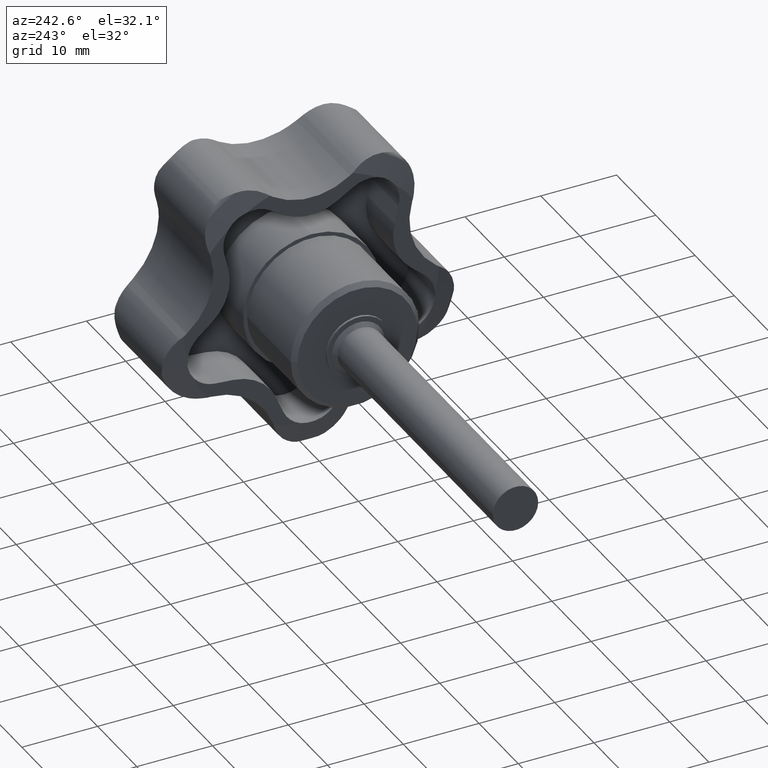
[diagram: clean part render]
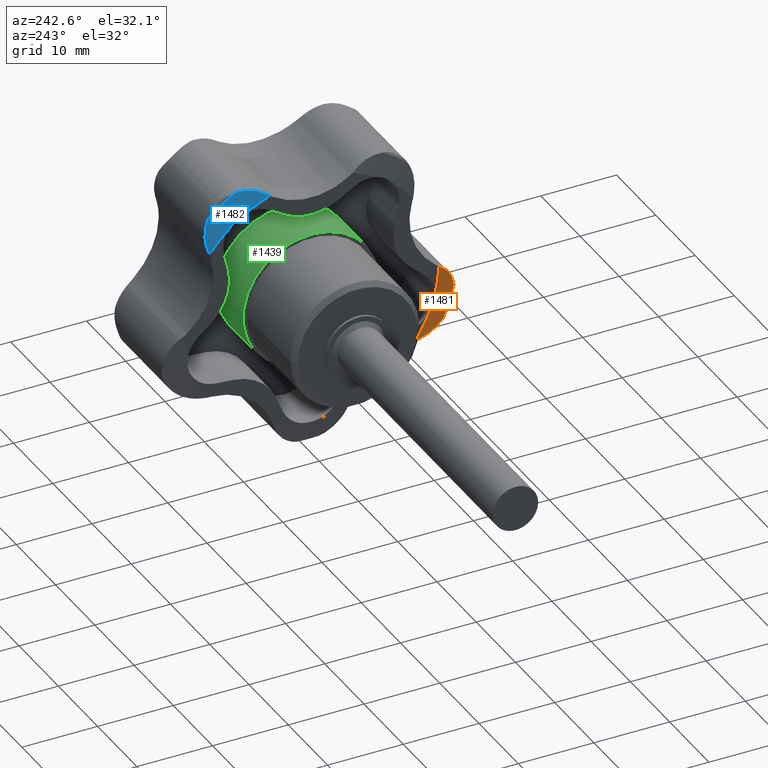
[diagram: same view with three faces highlighted in distinct colors, each labeled with its STEP entity id]
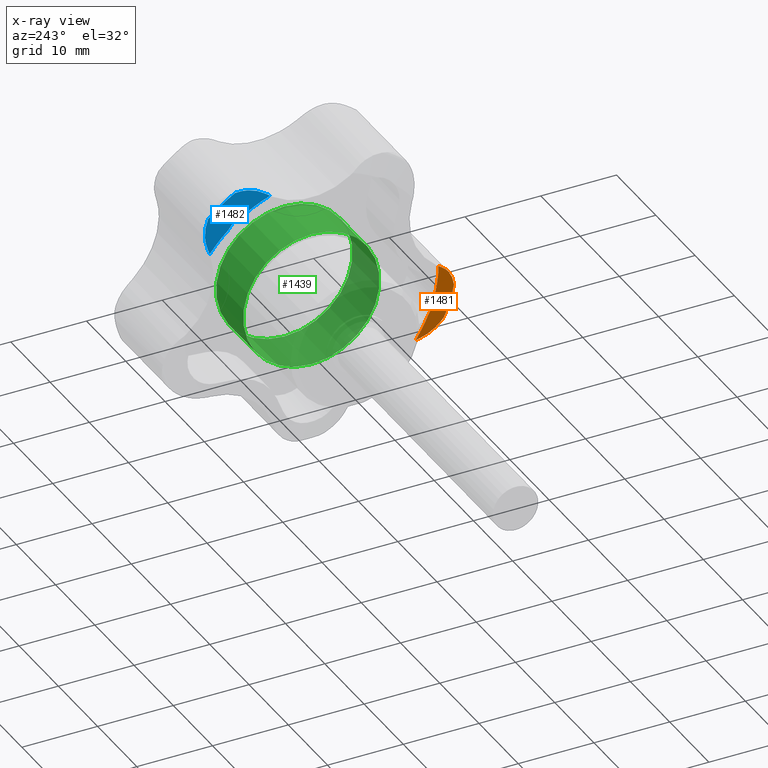
[diagram: x-ray of the same camera — body ghosted, the three highlighted faces saturated]
A machine part, auxiliary view with three faces highlighted in distinct colors.
The next image is the same camera in x-ray (body ghosted, the three faces saturated) — at least one of them is partly hidden behind the body in this view.
Their STEP definitions:

[orange] entity #1481 — the highlighted conical surface has half-angle 75 deg.
#248=B_SPLINE_CURVE_WITH_KNOTS('',3,(#2438,#2439,#2440,#2441,#2442,#2443,
#2444,#2445),.UNSPECIFIED.,.F.,.F.,(4,2,2,4),(-0.721710174736961,-0.708651968026769,
-0.475513355608159,-0.338070224875224),.UNSPECIFIED.);
#266=B_SPLINE_CURVE_WITH_KNOTS('',3,(#2766,#2767,#2768,#2769,#2770,#2771,
#2772,#2773),.UNSPECIFIED.,.F.,.F.,(4,2,2,4),(-1.54551093601554,-1.4080678052826,
-1.17492919286399,-1.1618709861538),.UNSPECIFIED.);
#274=B_SPLINE_CURVE_WITH_KNOTS('',3,(#2983,#2984,#2985,#2986,#2987,#2988),
 .UNSPECIFIED.,.F.,.F.,(4,2,4),(0.600800453896133,0.742189715482243,0.883578977068353),
 .UNSPECIFIED.);
#283=CONICAL_SURFACE('',#1633,18.2147047612756,75.0000000000002);
#349=FACE_OUTER_BOUND('',#442,.T.);
#442=EDGE_LOOP('',(#1217,#1218,#1219,#1220,#1221,#1222,#1223,#1224));
#512=CIRCLE('',#1574,198.435142955694);
#513=CIRCLE('',#1577,198.435142966901);
#524=CIRCLE('',#1597,16.8);
#533=CIRCLE('',#1607,16.8);
#548=CIRCLE('',#1634,19.6294095225513);
#618=VERTEX_POINT('',#2435);
#619=VERTEX_POINT('',#2437);
#650=VERTEX_POINT('',#2722);
#651=VERTEX_POINT('',#2724);
#654=VERTEX_POINT('',#2747);
#656=VERTEX_POINT('',#2777);
#677=VERTEX_POINT('',#2915);
#688=VERTEX_POINT('',#2939);
#777=EDGE_CURVE('',#619,#618,#248,.T.);
#824=EDGE_CURVE('',#651,#650,#512,.T.);
#829=EDGE_CURVE('',#650,#654,#266,.T.);
#832=EDGE_CURVE('',#618,#656,#513,.T.);
#861=EDGE_CURVE('',#677,#651,#524,.T.);
#874=EDGE_CURVE('',#656,#688,#533,.T.);
#892=EDGE_CURVE('',#619,#654,#548,.T.);
#893=EDGE_CURVE('',#688,#677,#274,.T.);
#1217=ORIENTED_EDGE('',*,*,#829,.T.);
#1218=ORIENTED_EDGE('',*,*,#892,.F.);
#1219=ORIENTED_EDGE('',*,*,#777,.T.);
#1220=ORIENTED_EDGE('',*,*,#832,.T.);
#1221=ORIENTED_EDGE('',*,*,#874,.T.);
#1222=ORIENTED_EDGE('',*,*,#893,.T.);
#1223=ORIENTED_EDGE('',*,*,#861,.T.);
#1224=ORIENTED_EDGE('',*,*,#824,.T.);
#1481=ADVANCED_FACE('',(#349),#283,.T.);
#1574=AXIS2_PLACEMENT_3D('',#2725,#1825,#1826);
#1577=AXIS2_PLACEMENT_3D('',#2779,#1835,#1836);
#1597=AXIS2_PLACEMENT_3D('',#2916,#1887,#1888);
#1607=AXIS2_PLACEMENT_3D('',#2941,#1911,#1912);
#1633=AXIS2_PLACEMENT_3D('',#2981,#1965,#1966);
#1634=AXIS2_PLACEMENT_3D('',#2982,#1967,#1968);
#1825=DIRECTION('center_axis',(-5.53654766431652E-12,0.0257930001523872,
0.999667305228664));
#1826=DIRECTION('ref_axis',(-0.976886425875496,-0.213687885507584,0.00551348596600251));
#1835=DIRECTION('center_axis',(7.77259852789284E-12,0.608456674673865,-0.793587093547282));
#1836=DIRECTION('ref_axis',(-0.977602919148938,-0.167016682218452,-0.128054520936265));
#1887=DIRECTION('center_axis',(1.,0.,0.));
#1888=DIRECTION('ref_axis',(0.,-1.,0.));
#1911=DIRECTION('center_axis',(1.,0.,0.));
#1912=DIRECTION('ref_axis',(0.,-1.,0.));
#1965=DIRECTION('center_axis',(1.,0.,0.));
#1966=DIRECTION('ref_axis',(0.,-1.,0.));
#1967=DIRECTION('center_axis',(1.,0.,0.));
#1968=DIRECTION('ref_axis',(0.,-1.,0.));
#2435=CARTESIAN_POINT('',(12.1421774451229,-17.3176416829528,-0.670409617826343));
#2437=CARTESIAN_POINT('',(12.7581379966245,-19.2278007211484,-3.95036677181113));
#2438=CARTESIAN_POINT('Ctrl Pts',(12.7581379966246,-19.2278007211485,-3.95036677181111));
#2439=CARTESIAN_POINT('Ctrl Pts',(12.754091489499,-19.2215814669334,-3.90559719444632));
#2440=CARTESIAN_POINT('Ctrl Pts',(12.7499277066323,-19.2147556181955,-3.86091598004236));
#2441=CARTESIAN_POINT('Ctrl Pts',(12.6692375406312,-19.0746980022272,-3.0205760475573));
#2442=CARTESIAN_POINT('Ctrl Pts',(12.5540009286027,-18.7402148678436,-2.26131746054438));
#2443=CARTESIAN_POINT('Ctrl Pts',(12.3364924264743,-18.0130283319763,-1.28674684411202));
#2444=CARTESIAN_POINT('Ctrl Pts',(12.2439035140007,-17.6866210361813,-0.953312341564426));
#2445=CARTESIAN_POINT('Ctrl Pts',(12.142177445123,-17.3176416829528,-0.670409617826317));
#2722=CARTESIAN_POINT('',(12.1421774451229,-14.4043233103581,-9.63668161171112));
#2724=CARTESIAN_POINT('',(12.,-13.7494888561924,-9.6535773780211));
#2725=CARTESIAN_POINT('Origin',(205.990775015204,27.9988627982392,-10.730750987559));
#2747=CARTESIAN_POINT('',(12.7581379966245,-17.8775848774808,-8.10590384550033));
#2766=CARTESIAN_POINT('Ctrl Pts',(12.142177445123,-14.4043233103581,-9.63668161171113));
#2767=CARTESIAN_POINT('Ctrl Pts',(12.2439035140007,-14.8691199265401,-9.62468912268018));
#2768=CARTESIAN_POINT('Ctrl Pts',(12.3364924264743,-15.3291768591291,-9.54679233831717));
#2769=CARTESIAN_POINT('Ctrl Pts',(12.5540009286027,-16.490321360383,-9.18577766885335));
#2770=CARTESIAN_POINT('Ctrl Pts',(12.6692375406312,-17.2072049005538,-8.76812882236608));
#2771=CARTESIAN_POINT('Ctrl Pts',(12.7499277066323,-17.8144533112909,-8.17060333707116));
#2772=CARTESIAN_POINT('Ctrl Pts',(12.754091489499,-17.8462384978021,-8.13846760851156));
#2773=CARTESIAN_POINT('Ctrl Pts',(12.7581379966246,-17.8775848774808,-8.10590384550034));
#2777=CARTESIAN_POINT('',(12.,-16.7978005632937,-0.271838620896992));
#2779=CARTESIAN_POINT('Origin',(205.990775026179,16.3441786505823,25.1386785486487));
#2915=CARTESIAN_POINT('',(12.,-15.4823174020338,-6.52210455778512));
#2916=CARTESIAN_POINT('Origin',(12.,7.34788079488412E-16,0.));
#2939=CARTESIAN_POINT('',(12.,-16.3590547635279,-3.82378441388815));
#2941=CARTESIAN_POINT('Origin',(12.,7.34788079488412E-16,0.));
#2981=CARTESIAN_POINT('Origin',(12.3790689983123,7.57999361260367E-16,0.));
#2982=CARTESIAN_POINT('Origin',(12.7581379966245,7.81210643032323E-16,0.));
#2983=CARTESIAN_POINT('Ctrl Pts',(12.,-16.359054763528,-3.82378441388815));
#2984=CARTESIAN_POINT('Ctrl Pts',(12.0360240145072,-16.3827459540984,-4.31311234517297));
#2985=CARTESIAN_POINT('Ctrl Pts',(12.0535898384863,-16.3135997258584,-4.80505830915536));
#2986=CARTESIAN_POINT('Ctrl Pts',(12.0535898384863,-16.0223218281768,-5.70151949959289));
#2987=CARTESIAN_POINT('Ctrl Pts',(12.0360240145072,-15.7891037193663,-6.14015527797992));
#2988=CARTESIAN_POINT('Ctrl Pts',(12.,-15.4823174020338,-6.52210455778513));

[blue] entity #1482 — the highlighted conical surface has half-angle 75 deg.
#260=B_SPLINE_CURVE_WITH_KNOTS('',3,(#2634,#2635,#2636,#2637,#2638,#2639,
#2640,#2641),.UNSPECIFIED.,.F.,.F.,(4,2,2,4),(-0.721710174736953,-0.708651968026769,
-0.475513355608159,-0.338070224875224),.UNSPECIFIED.);
#272=B_SPLINE_CURVE_WITH_KNOTS('',3,(#2892,#2893,#2894,#2895,#2896,#2897,
#2898,#2899),.UNSPECIFIED.,.F.,.F.,(4,2,2,4),(-1.54551093601553,-1.4080678052826,
-1.17492919286399,-1.16187098615379),.UNSPECIFIED.);
#275=B_SPLINE_CURVE_WITH_KNOTS('',3,(#2993,#2994,#2995,#2996,#2997,#2998),
 .UNSPECIFIED.,.F.,.F.,(4,2,4),(0.600800453896132,0.742189715482242,0.88357897706835),
 .UNSPECIFIED.);
#284=CONICAL_SURFACE('',#1635,18.2147047612756,75.0000000000002);
#350=FACE_OUTER_BOUND('',#443,.T.);
#443=EDGE_LOOP('',(#1225,#1226,#1227,#1228,#1229,#1230,#1231,#1232));
#506=CIRCLE('',#1561,198.435142966266);
#518=CIRCLE('',#1588,198.435142963642);
#534=CIRCLE('',#1609,16.8);
#549=CIRCLE('',#1636,19.6294095225513);
#550=CIRCLE('',#1637,16.8);
#636=VERTEX_POINT('',#2631);
#637=VERTEX_POINT('',#2633);
#641=VERTEX_POINT('',#2682);
#666=VERTEX_POINT('',#2848);
#667=VERTEX_POINT('',#2850);
#670=VERTEX_POINT('',#2873);
#689=VERTEX_POINT('',#2943);
#695=VERTEX_POINT('',#2991);
#800=EDGE_CURVE('',#637,#636,#260,.T.);
#807=EDGE_CURVE('',#636,#641,#506,.T.);
#848=EDGE_CURVE('',#667,#666,#518,.T.);
#853=EDGE_CURVE('',#666,#670,#272,.T.);
#875=EDGE_CURVE('',#689,#667,#534,.T.);
#894=EDGE_CURVE('',#637,#670,#549,.T.);
#895=EDGE_CURVE('',#641,#695,#550,.T.);
#896=EDGE_CURVE('',#695,#689,#275,.T.);
#1225=ORIENTED_EDGE('',*,*,#853,.T.);
#1226=ORIENTED_EDGE('',*,*,#894,.F.);
#1227=ORIENTED_EDGE('',*,*,#800,.T.);
#1228=ORIENTED_EDGE('',*,*,#807,.T.);
#1229=ORIENTED_EDGE('',*,*,#895,.T.);
#1230=ORIENTED_EDGE('',*,*,#896,.T.);
#1231=ORIENTED_EDGE('',*,*,#875,.T.);
#1232=ORIENTED_EDGE('',*,*,#848,.T.);
#1482=ADVANCED_FACE('',(#350),#284,.T.);
#1561=AXIS2_PLACEMENT_3D('',#2684,#1789,#1790);
#1588=AXIS2_PLACEMENT_3D('',#2851,#1865,#1866);
#1609=AXIS2_PLACEMENT_3D('',#2944,#1915,#1916);
#1635=AXIS2_PLACEMENT_3D('',#2989,#1969,#1970);
#1636=AXIS2_PLACEMENT_3D('',#2990,#1971,#1972);
#1637=AXIS2_PLACEMENT_3D('',#2992,#1973,#1974);
#1789=DIRECTION('center_axis',(5.50940072122247E-11,-0.958710580151702,
0.284383585154253));
#1790=DIRECTION('ref_axis',(-0.977602919148819,0.0598507753169865,0.201768226353071));
#1865=DIRECTION('center_axis',(3.280493790394E-11,0.566722723746382,-0.823908583757617));
#1866=DIRECTION('ref_axis',(-0.97688642587556,0.176117876629213,0.121142083817688));
#1915=DIRECTION('center_axis',(1.,0.,0.));
#1916=DIRECTION('ref_axis',(0.,-1.,0.));
#1969=DIRECTION('center_axis',(1.,0.,0.));
#1970=DIRECTION('ref_axis',(0.,-1.,0.));
#1971=DIRECTION('center_axis',(1.,0.,0.));
#1972=DIRECTION('ref_axis',(0.,-1.,0.));
#1973=DIRECTION('center_axis',(1.,0.,0.));
#1974=DIRECTION('ref_axis',(0.,-1.,0.));
#2631=CARTESIAN_POINT('',(12.1421774451229,13.6162095376514,10.721427159739));
#2633=CARTESIAN_POINT('',(12.7581379966245,13.2336502182472,14.4977315503189));
#2634=CARTESIAN_POINT('Ctrl Pts',(12.7581379966246,13.2336502182472,14.4977315503189));
#2635=CARTESIAN_POINT('Ctrl Pts',(12.754091489499,13.2549336332212,14.4578566154919));
#2636=CARTESIAN_POINT('Ctrl Pts',(12.7499277066323,13.2756743644724,14.4176966204873));
#2637=CARTESIAN_POINT('Ctrl Pts',(12.6692375406312,13.6563047921896,13.6555235329177));
#2638=CARTESIAN_POINT('Ctrl Pts',(12.5540009286027,13.831983252264,12.8446661793678));
#2639=CARTESIAN_POINT('Ctrl Pts',(12.3364924264743,13.8165152223233,11.6287924670071));
#2640=CARTESIAN_POINT('Ctrl Pts',(12.2439035140007,13.7484340561401,11.1671808932262));
#2641=CARTESIAN_POINT('Ctrl Pts',(12.142177445123,13.6162095376514,10.721427159739));
#2682=CARTESIAN_POINT('',(12.,13.4299233914589,10.0934215060873));
#2684=CARTESIAN_POINT('Origin',(205.990775025535,1.55342623479082,-29.9444853363342));
#2848=CARTESIAN_POINT('',(12.1421774451229,5.98904301814907,16.2628880043361));
#2850=CARTESIAN_POINT('',(12.,5.44933973396357,15.8916549315622));
#2851=CARTESIAN_POINT('Origin',(205.990775022981,-28.9589330092217,-7.77595871694023));
#2873=CARTESIAN_POINT('',(12.7581379966245,9.69873924737656,17.0659947033691));
#2892=CARTESIAN_POINT('Ctrl Pts',(12.142177445123,5.98904301814905,16.2628880043361));
#2893=CARTESIAN_POINT('Ctrl Pts',(12.2439035140007,6.3721203877589,16.5263864732124));
#2894=CARTESIAN_POINT('Ctrl Pts',(12.3364924264743,6.79010084565303,16.7337813310463));
#2895=CARTESIAN_POINT('Ctrl Pts',(12.5540009286027,7.94168557866445,17.1242179418489));
#2896=CARTESIAN_POINT('Ctrl Pts',(12.6692375406312,8.76714437825248,17.2077064998832));
#2897=CARTESIAN_POINT('Ctrl Pts',(12.7499277066323,9.60963533047128,17.0812298880169));
#2898=CARTESIAN_POINT('Ctrl Pts',(12.754091489499,9.6542389938472,17.0739144013581));
#2899=CARTESIAN_POINT('Ctrl Pts',(12.7581379966246,9.69873924737657,17.0659947033692));
#2943=CARTESIAN_POINT('',(12.,8.69186101757673,14.376771266565));
#2944=CARTESIAN_POINT('Origin',(12.,7.34788079488412E-16,0.));
#2989=CARTESIAN_POINT('Origin',(12.3790689983123,7.57999361260367E-16,0.));
#2990=CARTESIAN_POINT('Origin',(12.7581379966245,7.81210643032323E-16,0.));
#2991=CARTESIAN_POINT('',(12.,10.9871892291753,12.7091177051082));
#2992=CARTESIAN_POINT('Origin',(12.,7.34788079488412E-16,0.));
#2993=CARTESIAN_POINT('Ctrl Pts',(12.,10.9871892291753,12.7091177051082));
#2994=CARTESIAN_POINT('Ctrl Pts',(12.0360240145072,10.7187360634197,13.1189176497665));
#2995=CARTESIAN_POINT('Ctrl Pts',(12.0535898384863,10.373637007123,13.4762671617313));
#2996=CARTESIAN_POINT('Ctrl Pts',(12.0535898384863,9.61106157082109,14.0303106470169));
#2997=CARTESIAN_POINT('Ctrl Pts',(12.0360240145072,9.16456051573363,14.2480922811465));
#2998=CARTESIAN_POINT('Ctrl Pts',(12.,8.69186101757674,14.376771266565));

[green] entity #1439 — the highlighted cylindrical surface (bore or boss wall) has radius 9.01 mm, axis along (1, 0, 0).
#294=FACE_BOUND('',#400,.T.);
#307=FACE_OUTER_BOUND('',#399,.T.);
#399=EDGE_LOOP('',(#991));
#400=EDGE_LOOP('',(#992));
#499=CIRCLE('',#1543,9.01);
#500=CIRCLE('',#1544,9.01);
#609=VERTEX_POINT('',#2341);
#610=VERTEX_POINT('',#2343);
#764=EDGE_CURVE('',#609,#609,#499,.T.);
#765=EDGE_CURVE('',#610,#610,#500,.T.);
#991=ORIENTED_EDGE('',*,*,#764,.F.);
#992=ORIENTED_EDGE('',*,*,#765,.F.);
#1399=CYLINDRICAL_SURFACE('',#1542,9.01);
#1439=ADVANCED_FACE('',(#307,#294),#1399,.T.);
#1542=AXIS2_PLACEMENT_3D('',#2340,#1735,#1736);
#1543=AXIS2_PLACEMENT_3D('',#2342,#1737,#1738);
#1544=AXIS2_PLACEMENT_3D('',#2344,#1739,#1740);
#1735=DIRECTION('center_axis',(1.,0.,0.));
#1736=DIRECTION('ref_axis',(0.,0.,-1.));
#1737=DIRECTION('center_axis',(1.,0.,0.));
#1738=DIRECTION('ref_axis',(0.,0.,-1.));
#1739=DIRECTION('center_axis',(-1.,0.,0.));
#1740=DIRECTION('ref_axis',(0.,0.,-1.));
#2340=CARTESIAN_POINT('Origin',(18.9,0.,0.));
#2341=CARTESIAN_POINT('',(18.9,-1.10337032479396E-15,9.01));
#2342=CARTESIAN_POINT('Origin',(18.9,0.,0.));
#2343=CARTESIAN_POINT('',(12.,1.10337032479396E-15,9.01));
#2344=CARTESIAN_POINT('Origin',(12.,0.,0.));